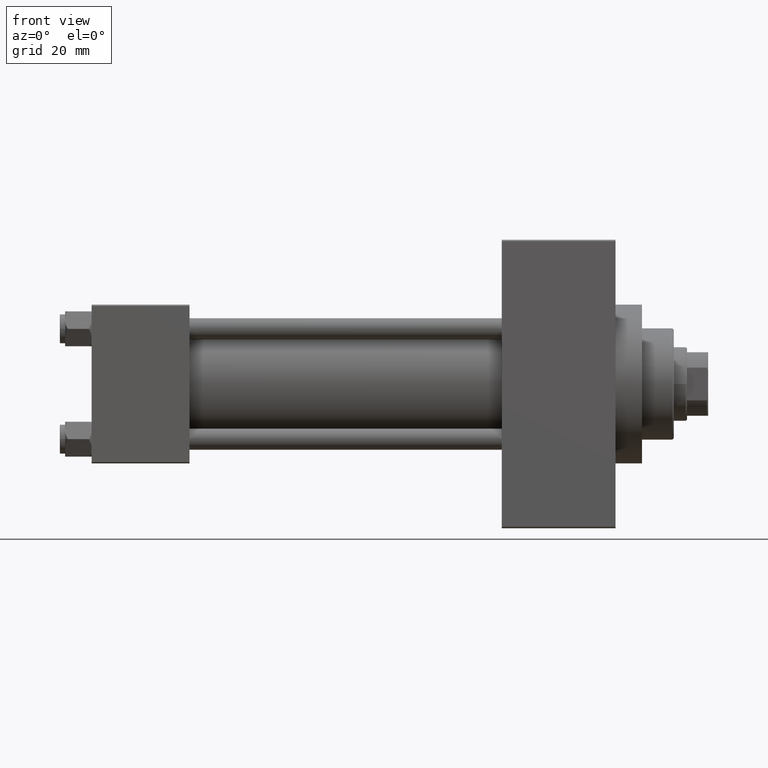
[diagram: clean part render]
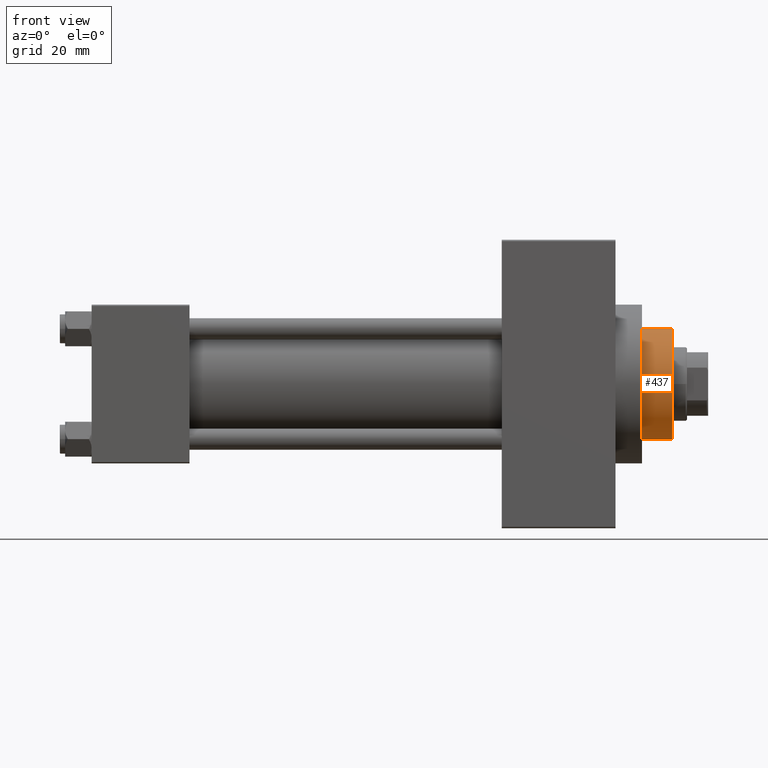
[diagram: same view with one face highlighted and labeled with its STEP entity id]
A machine part, front view. The second image highlights one B-rep face of the part: STEP entity #437.
In plain terms, the highlighted cylindrical surface (partial cylindrical patch) has radius 21 mm, axis along (-1, 0, 0).
Its self-contained STEP definition (entity closure, byte-faithful):
#437 = ADVANCED_FACE ( 'NONE', ( #5517 ), #17309, .T. ) ;
#1238 = CARTESIAN_POINT ( 'NONE',  ( 0.000000000000000000, 0.000000000000000000, 43.25999999999999801 ) ) ;
#3272 = CIRCLE ( 'NONE', #36931, 21.00000000000000000 ) ;
#3823 = ORIENTED_EDGE ( 'NONE', *, *, #33068, .T. ) ;
#4806 = EDGE_CURVE ( 'NONE', #35413, #28391, #3272, .T. ) ;
#4975 = CARTESIAN_POINT ( 'NONE',  ( 0.000000000000000000, 0.000000000000000000, 54.75999999999999091 ) ) ;
#5242 = VECTOR ( 'NONE', #27199, 1000.000000000000000 ) ;
#5455 = ORIENTED_EDGE ( 'NONE', *, *, #29384, .T. ) ;
#5517 = FACE_OUTER_BOUND ( 'NONE', #47694, .T. ) ;
#6480 = AXIS2_PLACEMENT_3D ( 'NONE', #36369, #43390, #12789 ) ;
#7335 = AXIS2_PLACEMENT_3D ( 'NONE', #4975, #17000, #43331 ) ;
#8386 = VERTEX_POINT ( 'NONE', #43608 ) ;
#9763 = ORIENTED_EDGE ( 'NONE', *, *, #44281, .T. ) ;
#10476 = VERTEX_POINT ( 'NONE', #37944 ) ;
#10774 = DIRECTION ( 'NONE',  ( 1.000000000000000000, 0.000000000000000000, 0.000000000000000000 ) ) ;
#11890 = CARTESIAN_POINT ( 'NONE',  ( -21.00000000000000000, 0.000000000000000000, 55.26000000000000512 ) ) ;
#12220 = ORIENTED_EDGE ( 'NONE', *, *, #46849, .F. ) ;
#12789 = DIRECTION ( 'NONE',  ( -1.000000000000000000, 0.000000000000000000, 0.000000000000000000 ) ) ;
#14811 = AXIS2_PLACEMENT_3D ( 'NONE', #1238, #24309, #28818 ) ;
#15921 = DIRECTION ( 'NONE',  ( 1.000000000000000000, 0.000000000000000000, 0.000000000000000000 ) ) ;
#16420 = CARTESIAN_POINT ( 'NONE',  ( 0.000000000000000000, 0.000000000000000000, 43.25999999999999801 ) ) ;
#17000 = DIRECTION ( 'NONE',  ( 0.000000000000000000, 0.000000000000000000, -1.000000000000000000 ) ) ;
#17309 = CYLINDRICAL_SURFACE ( 'NONE', #6480, 21.00000000000000000 ) ;
#18722 = LINE ( 'NONE', #23484, #19534 ) ;
#19534 = VECTOR ( 'NONE', #34256, 1000.000000000000000 ) ;
#19699 = DIRECTION ( 'NONE',  ( 0.000000000000000000, 0.000000000000000000, 1.000000000000000000 ) ) ;
#23484 = CARTESIAN_POINT ( 'NONE',  ( 21.00000000000000000, 2.571758278209441661E-15, 55.26000000000000512 ) ) ;
#24309 = DIRECTION ( 'NONE',  ( 0.000000000000000000, 0.000000000000000000, 1.000000000000000000 ) ) ;
#24524 = ORIENTED_EDGE ( 'NONE', *, *, #4806, .T. ) ;
#27199 = DIRECTION ( 'NONE',  ( -0.000000000000000000, -0.000000000000000000, -1.000000000000000000 ) ) ;
#27874 = CARTESIAN_POINT ( 'NONE',  ( 21.00000000000000000, 2.571758278209441661E-15, 43.25999999999999801 ) ) ;
#28391 = VERTEX_POINT ( 'NONE', #28840 ) ;
#28728 = CARTESIAN_POINT ( 'NONE',  ( 21.00000000000000000, 2.571758278209441661E-15, 54.75999999999999091 ) ) ;
#28818 = DIRECTION ( 'NONE',  ( 1.000000000000000000, 0.000000000000000000, 0.000000000000000000 ) ) ;
#28840 = CARTESIAN_POINT ( 'NONE',  ( 20.96385542168674831, 1.231570484631385076, 43.25999999999999801 ) ) ;
#29384 = EDGE_CURVE ( 'NONE', #28391, #31317, #38738, .T. ) ;
#29936 = AXIS2_PLACEMENT_3D ( 'NONE', #45868, #42124, #10774 ) ;
#31317 = VERTEX_POINT ( 'NONE', #41022 ) ;
#31523 = ORIENTED_EDGE ( 'NONE', *, *, #34420, .T. ) ;
#33068 = EDGE_CURVE ( 'NONE', #31317, #8386, #36448, .T. ) ;
#33744 = CIRCLE ( 'NONE', #7335, 21.00000000000000000 ) ;
#34256 = DIRECTION ( 'NONE',  ( -0.000000000000000000, -0.000000000000000000, -1.000000000000000000 ) ) ;
#34420 = EDGE_CURVE ( 'NONE', #10476, #34752, #33744, .T. ) ;
#34752 = VERTEX_POINT ( 'NONE', #28728 ) ;
#35413 = VERTEX_POINT ( 'NONE', #27874 ) ;
#36369 = CARTESIAN_POINT ( 'NONE',  ( 0.000000000000000000, 0.000000000000000000, 55.26000000000000512 ) ) ;
#36448 = CIRCLE ( 'NONE', #14811, 21.00000000000000000 ) ;
#36931 = AXIS2_PLACEMENT_3D ( 'NONE', #16420, #19699, #15921 ) ;
#37944 = CARTESIAN_POINT ( 'NONE',  ( -21.00000000000000000, 0.000000000000000000, 54.75999999999999091 ) ) ;
#38738 = CIRCLE ( 'NONE', #29936, 21.00000000000000000 ) ;
#41022 = CARTESIAN_POINT ( 'NONE',  ( -20.96385542168674831, 1.231570484631382856, 43.25999999999999801 ) ) ;
#42124 = DIRECTION ( 'NONE',  ( 0.000000000000000000, 0.000000000000000000, 1.000000000000000000 ) ) ;
#43331 = DIRECTION ( 'NONE',  ( 1.000000000000000000, 0.000000000000000000, 0.000000000000000000 ) ) ;
#43390 = DIRECTION ( 'NONE',  ( -0.000000000000000000, -0.000000000000000000, -1.000000000000000000 ) ) ;
#43608 = CARTESIAN_POINT ( 'NONE',  ( -21.00000000000000000, 0.000000000000000000, 43.25999999999999801 ) ) ;
#44281 = EDGE_CURVE ( 'NONE', #34752, #35413, #18722, .T. ) ;
#45868 = CARTESIAN_POINT ( 'NONE',  ( 0.000000000000000000, 0.000000000000000000, 43.25999999999999801 ) ) ;
#46240 = LINE ( 'NONE', #11890, #5242 ) ;
#46849 = EDGE_CURVE ( 'NONE', #10476, #8386, #46240, .T. ) ;
#47694 = EDGE_LOOP ( 'NONE', ( #31523, #9763, #24524, #5455, #3823, #12220 ) ) ;